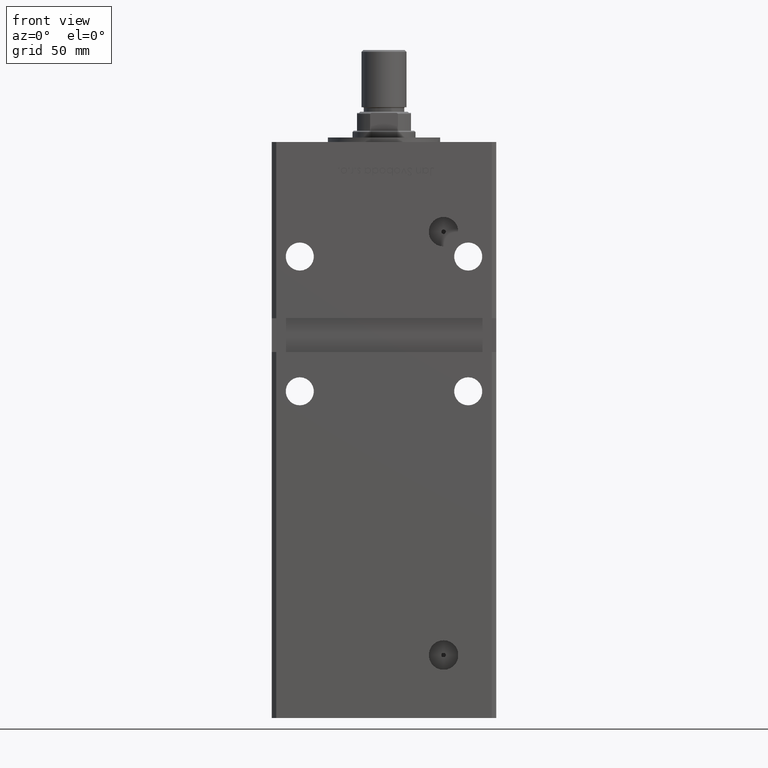
[diagram: clean part render]
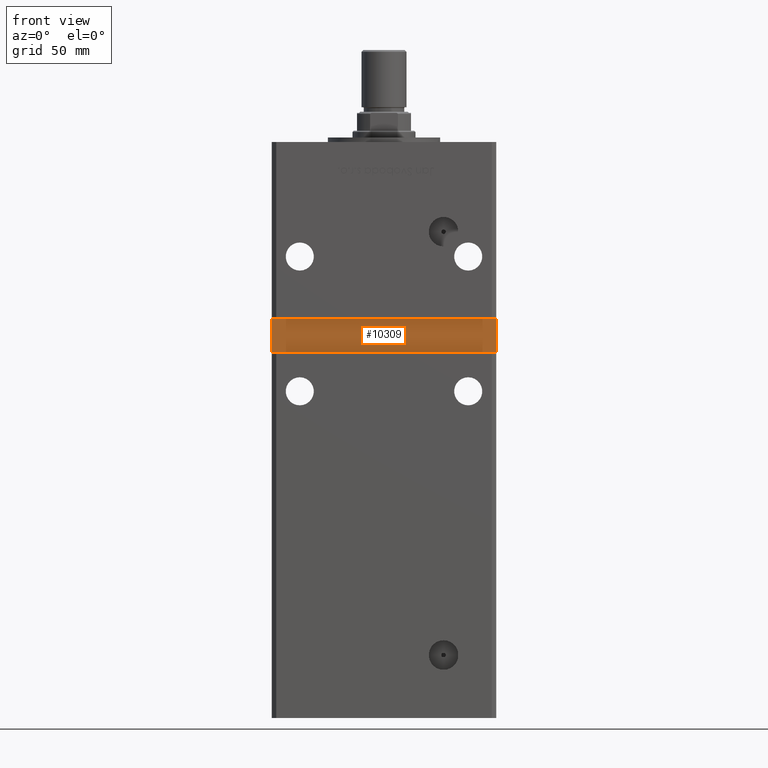
[diagram: same view with one face highlighted and labeled with its STEP entity id]
A machine part, front view. The second image highlights one B-rep face of the part: STEP entity #10309.
In plain terms, the highlighted planar face has unit normal (0, -1, 0).
Its self-contained STEP definition (entity closure, byte-faithful):
#993 = EDGE_LOOP ( 'NONE', ( #17196, #2792, #43385, #43220 ) ) ;
#2792 = ORIENTED_EDGE ( 'NONE', *, *, #4208, .T. ) ;
#4208 = EDGE_CURVE ( 'NONE', #20912, #30109, #18779, .T. ) ;
#4341 = DIRECTION ( 'NONE',  ( 0.000000000000000000, -1.000000000000000000, 0.000000000000000000 ) ) ;
#6824 = CARTESIAN_POINT ( 'NONE',  ( -49.99999999999998579, -38.50000000000000000, 159.0000000000000000 ) ) ;
#7182 = CARTESIAN_POINT ( 'NONE',  ( -49.99999999999998579, -38.50000000000000000, 159.0000000000000000 ) ) ;
#8162 = VERTEX_POINT ( 'NONE', #28014 ) ;
#9109 = LINE ( 'NONE', #51825, #50568 ) ;
#9428 = VERTEX_POINT ( 'NONE', #49867 ) ;
#10309 = ADVANCED_FACE ( 'NONE', ( #32823 ), #27963, .T. ) ;
#11328 = CARTESIAN_POINT ( 'NONE',  ( 49.99999999999998579, -38.50000000000000000, 159.0000000000000000 ) ) ;
#17102 = CARTESIAN_POINT ( 'NONE',  ( -49.99999999999998579, -38.50000000000000000, 144.0000000000000284 ) ) ;
#17196 = ORIENTED_EDGE ( 'NONE', *, *, #18723, .T. ) ;
#18723 = EDGE_CURVE ( 'NONE', #8162, #20912, #47017, .T. ) ;
#18779 = LINE ( 'NONE', #6824, #27763 ) ;
#20094 = VECTOR ( 'NONE', #49622, 1000.000000000000000 ) ;
#20912 = VERTEX_POINT ( 'NONE', #11328 ) ;
#26594 = EDGE_CURVE ( 'NONE', #9428, #8162, #45549, .T. ) ;
#27763 = VECTOR ( 'NONE', #35310, 1000.000000000000000 ) ;
#27963 = PLANE ( 'NONE',  #41808 ) ;
#28014 = CARTESIAN_POINT ( 'NONE',  ( 49.99999999999998579, -38.49999999999999289, 144.0000000000000284 ) ) ;
#30109 = VERTEX_POINT ( 'NONE', #7182 ) ;
#32306 = CARTESIAN_POINT ( 'NONE',  ( 0.000000000000000000, -38.50000000000000000, 0.000000000000000000 ) ) ;
#32823 = FACE_OUTER_BOUND ( 'NONE', #993, .T. ) ;
#35310 = DIRECTION ( 'NONE',  ( -1.000000000000000000, -0.000000000000000000, -0.000000000000000000 ) ) ;
#36554 = EDGE_CURVE ( 'NONE', #30109, #9428, #9109, .T. ) ;
#41808 = AXIS2_PLACEMENT_3D ( 'NONE', #32306, #4341, #42024 ) ;
#42024 = DIRECTION ( 'NONE',  ( 0.000000000000000000, -0.000000000000000000, -1.000000000000000000 ) ) ;
#42489 = VECTOR ( 'NONE', #44232, 1000.000000000000000 ) ;
#43220 = ORIENTED_EDGE ( 'NONE', *, *, #26594, .T. ) ;
#43385 = ORIENTED_EDGE ( 'NONE', *, *, #36554, .T. ) ;
#43433 = DIRECTION ( 'NONE',  ( 0.000000000000000000, 0.000000000000000000, -1.000000000000000000 ) ) ;
#44232 = DIRECTION ( 'NONE',  ( -0.000000000000000000, -0.000000000000000000, 1.000000000000000000 ) ) ;
#45549 = LINE ( 'NONE', #17102, #20094 ) ;
#47017 = LINE ( 'NONE', #47285, #42489 ) ;
#47285 = CARTESIAN_POINT ( 'NONE',  ( 49.99999999999998579, -38.50000000000000000, 159.0000000000000000 ) ) ;
#49622 = DIRECTION ( 'NONE',  ( 1.000000000000000000, 0.000000000000000000, 0.000000000000000000 ) ) ;
#49867 = CARTESIAN_POINT ( 'NONE',  ( -49.99999999999998579, -38.50000000000000000, 144.0000000000000284 ) ) ;
#50568 = VECTOR ( 'NONE', #43433, 1000.000000000000000 ) ;
#51825 = CARTESIAN_POINT ( 'NONE',  ( -49.99999999999998579, -38.50000000000000000, 159.0000000000000000 ) ) ;